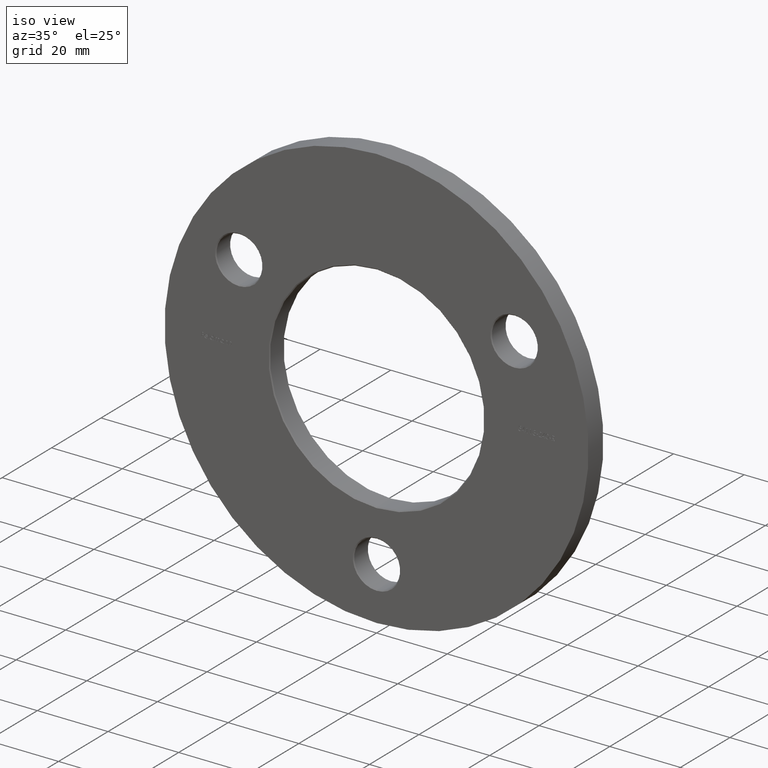
[diagram: clean part render]
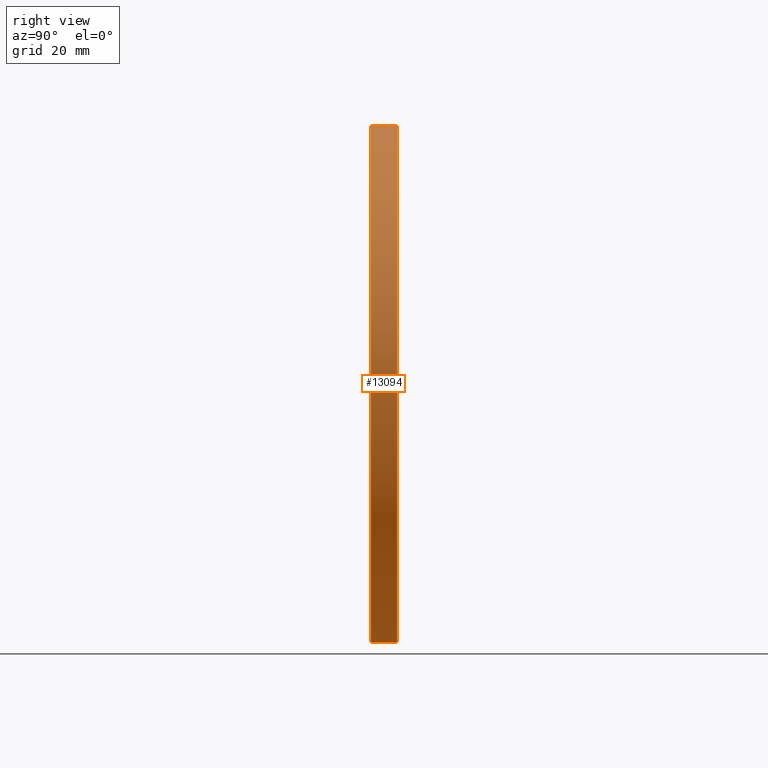
[diagram: tour spotlight — one face highlighted and labeled with its STEP entity id]
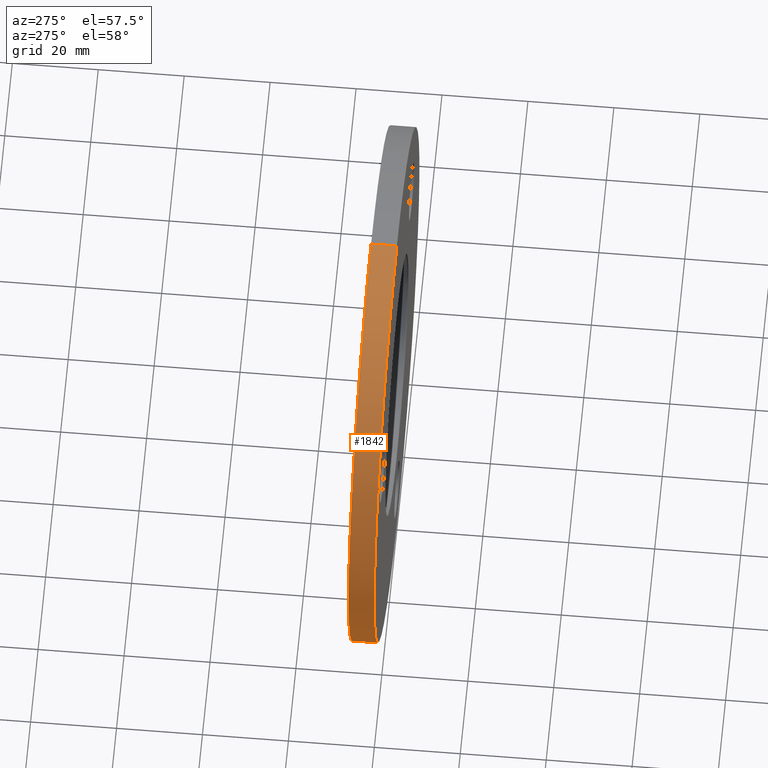
[diagram: tour spotlight — one face highlighted and labeled with its STEP entity id]
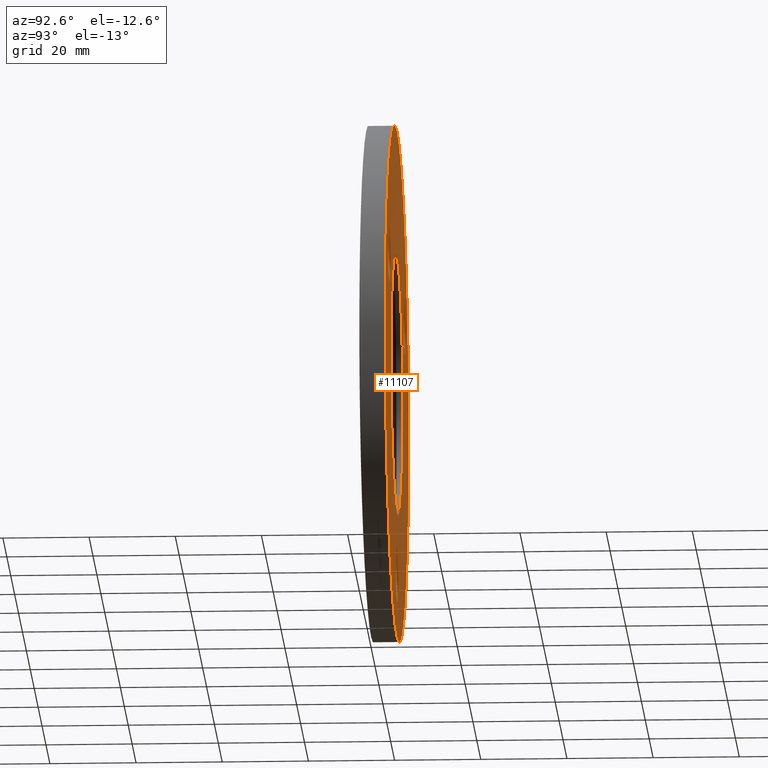
[diagram: tour spotlight — one face highlighted and labeled with its STEP entity id]
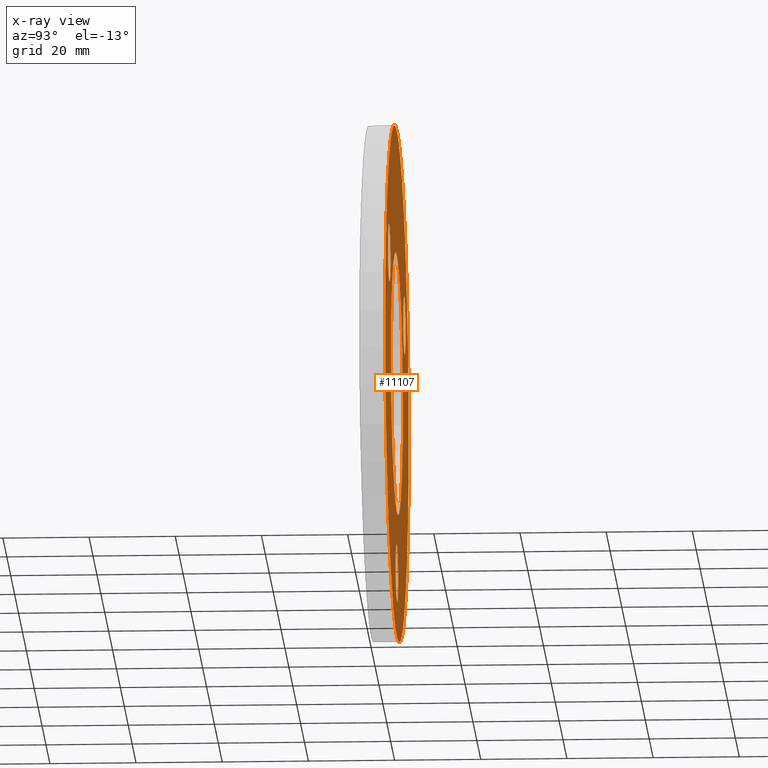
[diagram: x-ray of the same camera — body ghosted, this tour face saturated]
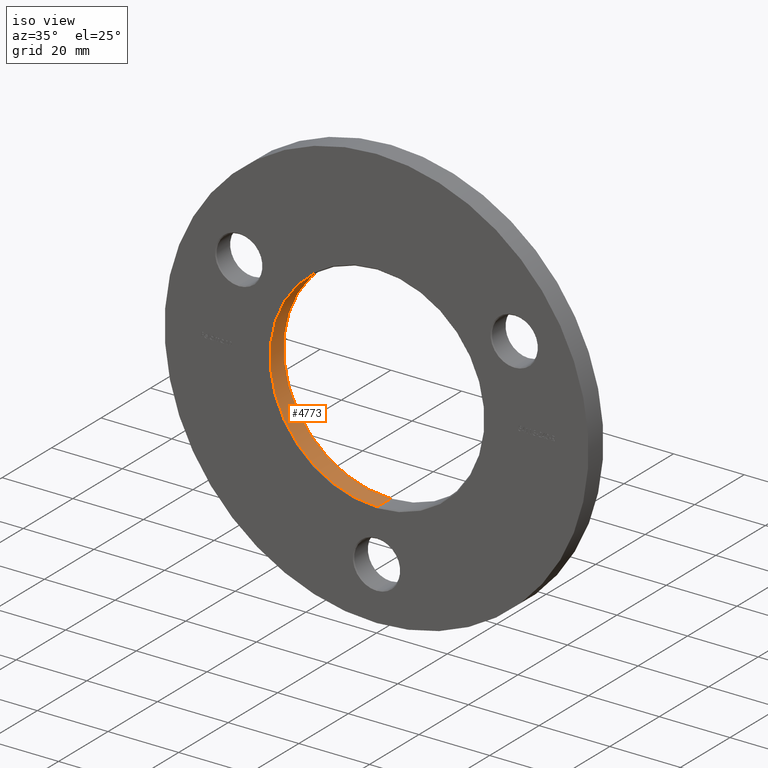
[diagram: tour spotlight — one face highlighted and labeled with its STEP entity id]
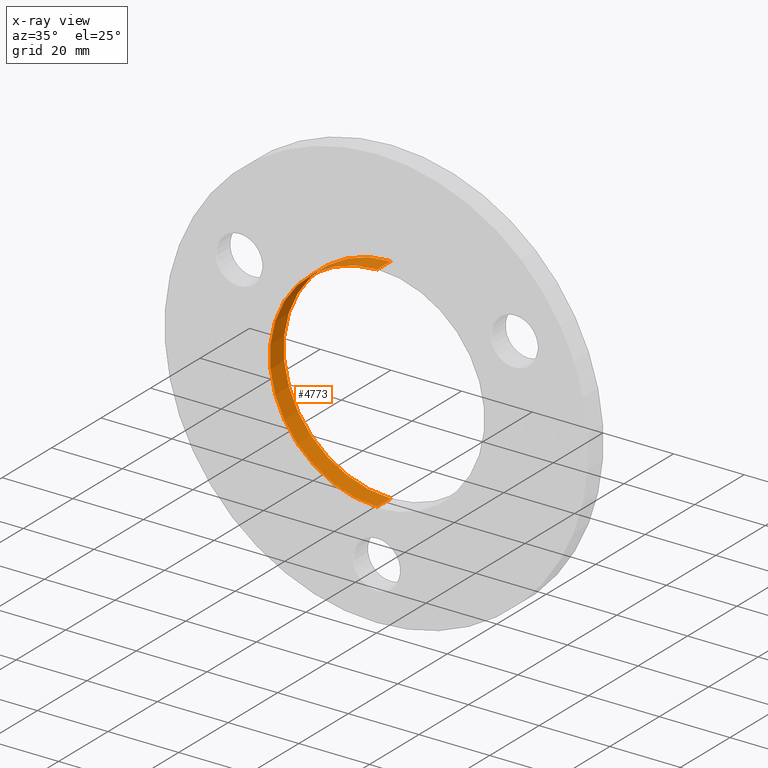
[diagram: x-ray of the same camera — body ghosted, this tour face saturated]
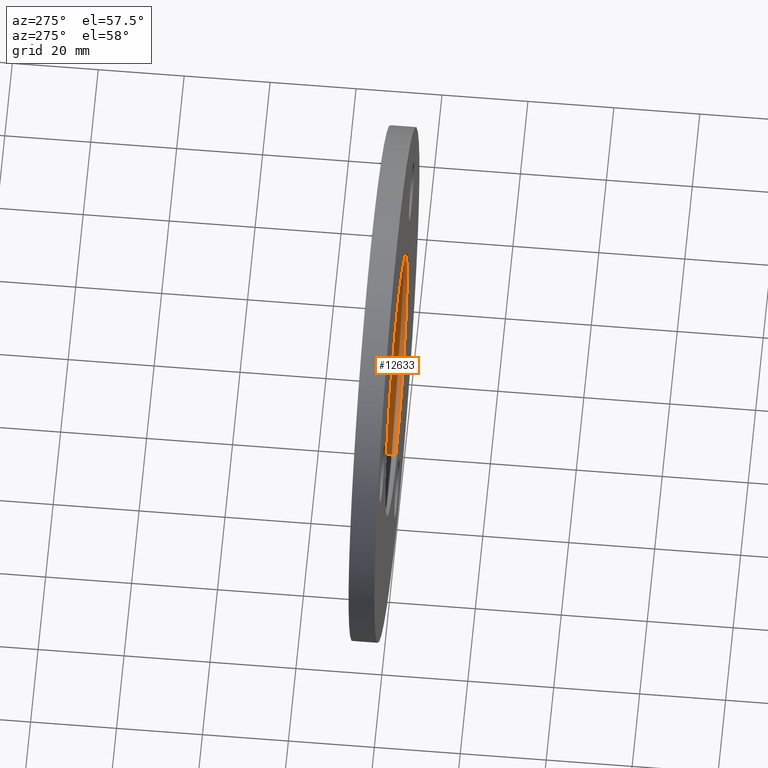
[diagram: tour spotlight — one face highlighted and labeled with its STEP entity id]
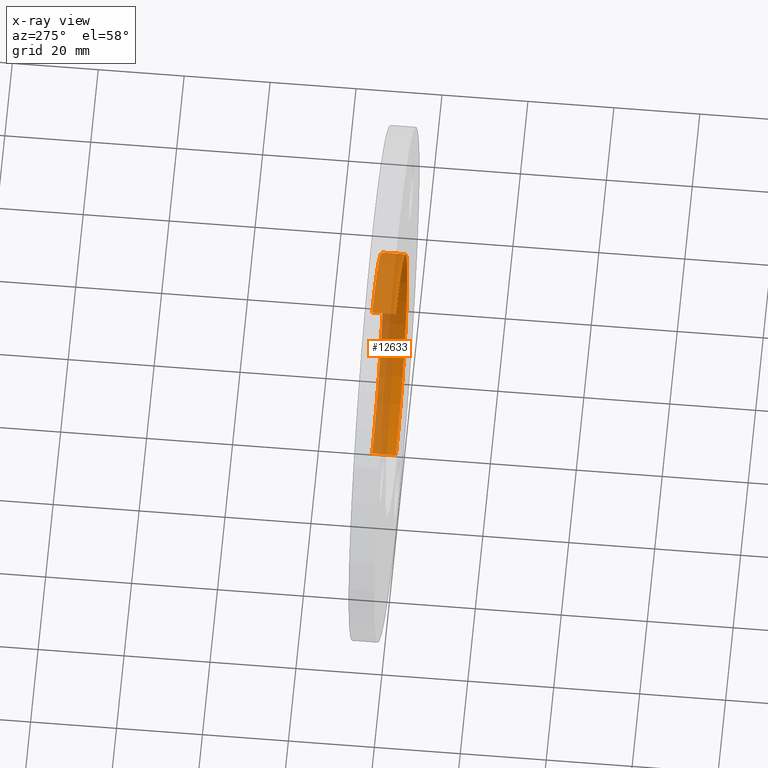
[diagram: x-ray of the same camera — body ghosted, this tour face saturated]
A machine part: a face-by-face anatomy tour. The part has 270 B-rep faces; the first image is the clean iso view, then the 5 largest visible faces are spotlighted one at a time (largest first), each with its STEP entity span.

Face 1 — right view, entity #13094. In plain terms, the highlighted cylindrical surface (partial cylindrical patch) has radius 60 mm, axis along (-0, -1, -0).
Definition (entity closure, byte-faithful):
#180 = ORIENTED_EDGE ( 'NONE', *, *, #6121, .T. ) ;
#286 = LINE ( 'NONE', #12844, #9824 ) ;
#524 = CIRCLE ( 'NONE', #11361, 60.00000000000000000 ) ;
#664 = VECTOR ( 'NONE', #2003, 1000.000000000000000 ) ;
#1022 = CARTESIAN_POINT ( 'NONE',  ( 7.347880794884118356E-15, 6.000000000000000000, 60.00000000000000000 ) ) ;
#1240 = VERTEX_POINT ( 'NONE', #2519 ) ;
#1245 = CIRCLE ( 'NONE', #12907, 60.00000000000000000 ) ;
#1356 = CARTESIAN_POINT ( 'NONE',  ( 0.000000000000000000, 6.000000000000000000, -60.00000000000000000 ) ) ;
#2003 = DIRECTION ( 'NONE',  ( -0.000000000000000000, -1.000000000000000000, -0.000000000000000000 ) ) ;
#2519 = CARTESIAN_POINT ( 'NONE',  ( 7.347880794884118356E-15, 0.000000000000000000, 60.00000000000000000 ) ) ;
#2871 = DIRECTION ( 'NONE',  ( 0.000000000000000000, 1.000000000000000000, 0.000000000000000000 ) ) ;
#3474 = CARTESIAN_POINT ( 'NONE',  ( 0.000000000000000000, 0.000000000000000000, 0.000000000000000000 ) ) ;
#3690 = VERTEX_POINT ( 'NONE', #10359 ) ;
#4228 = VERTEX_POINT ( 'NONE', #1356 ) ;
#4402 = DIRECTION ( 'NONE',  ( 0.000000000000000000, 0.000000000000000000, -1.000000000000000000 ) ) ;
#4544 = DIRECTION ( 'NONE',  ( 0.000000000000000000, 1.000000000000000000, 0.000000000000000000 ) ) ;
#5380 = CYLINDRICAL_SURFACE ( 'NONE', #9853, 60.00000000000000000 ) ;
#5437 = DIRECTION ( 'NONE',  ( 0.000000000000000000, 0.000000000000000000, 1.000000000000000000 ) ) ;
#5600 = CARTESIAN_POINT ( 'NONE',  ( 0.000000000000000000, 6.000000000000000000, 0.000000000000000000 ) ) ;
#5797 = ORIENTED_EDGE ( 'NONE', *, *, #7288, .T. ) ;
#6022 = CARTESIAN_POINT ( 'NONE',  ( 0.000000000000000000, 6.000000000000000000, 0.000000000000000000 ) ) ;
#6121 = EDGE_CURVE ( 'NONE', #1240, #3690, #524, .T. ) ;
#6561 = LINE ( 'NONE', #1022, #664 ) ;
#7048 = DIRECTION ( 'NONE',  ( 0.000000000000000000, 0.000000000000000000, 1.000000000000000000 ) ) ;
#7288 = EDGE_CURVE ( 'NONE', #11442, #1240, #6561, .T. ) ;
#8502 = DIRECTION ( 'NONE',  ( -0.000000000000000000, -1.000000000000000000, -0.000000000000000000 ) ) ;
#9194 = FACE_OUTER_BOUND ( 'NONE', #11242, .T. ) ;
#9554 = ORIENTED_EDGE ( 'NONE', *, *, #13032, .F. ) ;
#9824 = VECTOR ( 'NONE', #12888, 1000.000000000000000 ) ;
#9853 = AXIS2_PLACEMENT_3D ( 'NONE', #5600, #8502, #4402 ) ;
#10359 = CARTESIAN_POINT ( 'NONE',  ( 0.000000000000000000, 0.000000000000000000, -60.00000000000000000 ) ) ;
#10460 = EDGE_CURVE ( 'NONE', #11442, #4228, #1245, .T. ) ;
#11242 = EDGE_LOOP ( 'NONE', ( #12869, #5797, #180, #9554 ) ) ;
#11297 = CARTESIAN_POINT ( 'NONE',  ( 7.347880794884118356E-15, 6.000000000000000000, 60.00000000000000000 ) ) ;
#11361 = AXIS2_PLACEMENT_3D ( 'NONE', #3474, #4544, #5437 ) ;
#11442 = VERTEX_POINT ( 'NONE', #11297 ) ;
#12844 = CARTESIAN_POINT ( 'NONE',  ( 0.000000000000000000, 6.000000000000000000, -60.00000000000000000 ) ) ;
#12869 = ORIENTED_EDGE ( 'NONE', *, *, #10460, .F. ) ;
#12888 = DIRECTION ( 'NONE',  ( -0.000000000000000000, -1.000000000000000000, -0.000000000000000000 ) ) ;
#12907 = AXIS2_PLACEMENT_3D ( 'NONE', #6022, #2871, #7048 ) ;
#13032 = EDGE_CURVE ( 'NONE', #4228, #3690, #286, .T. ) ;
#13094 = ADVANCED_FACE ( 'NONE', ( #9194 ), #5380, .T. ) ;

Face 2 — auxiliary view, entity #1842. In plain terms, the highlighted cylindrical surface (partial cylindrical patch) has radius 60 mm, axis along (-0, -1, -0).
Definition (entity closure, byte-faithful):
#178 = DIRECTION ( 'NONE',  ( 0.000000000000000000, 1.000000000000000000, 0.000000000000000000 ) ) ;
#286 = LINE ( 'NONE', #12844, #9824 ) ;
#341 = ORIENTED_EDGE ( 'NONE', *, *, #13032, .T. ) ;
#664 = VECTOR ( 'NONE', #2003, 1000.000000000000000 ) ;
#871 = DIRECTION ( 'NONE',  ( 0.000000000000000000, 0.000000000000000000, 1.000000000000000000 ) ) ;
#1022 = CARTESIAN_POINT ( 'NONE',  ( 7.347880794884118356E-15, 6.000000000000000000, 60.00000000000000000 ) ) ;
#1240 = VERTEX_POINT ( 'NONE', #2519 ) ;
#1349 = CYLINDRICAL_SURFACE ( 'NONE', #3080, 60.00000000000000000 ) ;
#1356 = CARTESIAN_POINT ( 'NONE',  ( 0.000000000000000000, 6.000000000000000000, -60.00000000000000000 ) ) ;
#1842 = ADVANCED_FACE ( 'NONE', ( #5207 ), #1349, .T. ) ;
#2003 = DIRECTION ( 'NONE',  ( -0.000000000000000000, -1.000000000000000000, -0.000000000000000000 ) ) ;
#2031 = ORIENTED_EDGE ( 'NONE', *, *, #12360, .T. ) ;
#2283 = AXIS2_PLACEMENT_3D ( 'NONE', #10158, #178, #10245 ) ;
#2519 = CARTESIAN_POINT ( 'NONE',  ( 7.347880794884118356E-15, 0.000000000000000000, 60.00000000000000000 ) ) ;
#3080 = AXIS2_PLACEMENT_3D ( 'NONE', #10450, #10406, #7395 ) ;
#3361 = CIRCLE ( 'NONE', #3702, 60.00000000000000000 ) ;
#3690 = VERTEX_POINT ( 'NONE', #10359 ) ;
#3702 = AXIS2_PLACEMENT_3D ( 'NONE', #9983, #5955, #871 ) ;
#4228 = VERTEX_POINT ( 'NONE', #1356 ) ;
#5207 = FACE_OUTER_BOUND ( 'NONE', #7311, .T. ) ;
#5955 = DIRECTION ( 'NONE',  ( 0.000000000000000000, 1.000000000000000000, 0.000000000000000000 ) ) ;
#6561 = LINE ( 'NONE', #1022, #664 ) ;
#6821 = ORIENTED_EDGE ( 'NONE', *, *, #7662, .F. ) ;
#7288 = EDGE_CURVE ( 'NONE', #11442, #1240, #6561, .T. ) ;
#7295 = CIRCLE ( 'NONE', #2283, 60.00000000000000000 ) ;
#7311 = EDGE_LOOP ( 'NONE', ( #7483, #6821, #341, #2031 ) ) ;
#7395 = DIRECTION ( 'NONE',  ( 0.000000000000000000, 0.000000000000000000, -1.000000000000000000 ) ) ;
#7483 = ORIENTED_EDGE ( 'NONE', *, *, #7288, .F. ) ;
#7662 = EDGE_CURVE ( 'NONE', #4228, #11442, #3361, .T. ) ;
#9824 = VECTOR ( 'NONE', #12888, 1000.000000000000000 ) ;
#9983 = CARTESIAN_POINT ( 'NONE',  ( 0.000000000000000000, 6.000000000000000000, 0.000000000000000000 ) ) ;
#10158 = CARTESIAN_POINT ( 'NONE',  ( 0.000000000000000000, 0.000000000000000000, 0.000000000000000000 ) ) ;
#10245 = DIRECTION ( 'NONE',  ( 0.000000000000000000, 0.000000000000000000, 1.000000000000000000 ) ) ;
#10359 = CARTESIAN_POINT ( 'NONE',  ( 0.000000000000000000, 0.000000000000000000, -60.00000000000000000 ) ) ;
#10406 = DIRECTION ( 'NONE',  ( -0.000000000000000000, -1.000000000000000000, -0.000000000000000000 ) ) ;
#10450 = CARTESIAN_POINT ( 'NONE',  ( 0.000000000000000000, 6.000000000000000000, 0.000000000000000000 ) ) ;
#11297 = CARTESIAN_POINT ( 'NONE',  ( 7.347880794884118356E-15, 6.000000000000000000, 60.00000000000000000 ) ) ;
#11442 = VERTEX_POINT ( 'NONE', #11297 ) ;
#12360 = EDGE_CURVE ( 'NONE', #3690, #1240, #7295, .T. ) ;
#12844 = CARTESIAN_POINT ( 'NONE',  ( 0.000000000000000000, 6.000000000000000000, -60.00000000000000000 ) ) ;
#12888 = DIRECTION ( 'NONE',  ( -0.000000000000000000, -1.000000000000000000, -0.000000000000000000 ) ) ;
#13032 = EDGE_CURVE ( 'NONE', #4228, #3690, #286, .T. ) ;

Face 3 — auxiliary view, entity #11107. An x-ray twin of the same camera follows (body ghosted, this face saturated) — the face is partly hidden behind the body. In plain terms, the highlighted planar face has unit normal (0, 1, 0).
Definition (entity closure, byte-faithful):
#815 = VERTEX_POINT ( 'NONE', #5241 ) ;
#871 = DIRECTION ( 'NONE',  ( 0.000000000000000000, 0.000000000000000000, 1.000000000000000000 ) ) ;
#994 = DIRECTION ( 'NONE',  ( -0.000000000000000000, -1.000000000000000000, -0.000000000000000000 ) ) ;
#1045 = AXIS2_PLACEMENT_3D ( 'NONE', #6115, #8075, #2956 ) ;
#1060 = CIRCLE ( 'NONE', #5845, 6.749999999999992006 ) ;
#1245 = CIRCLE ( 'NONE', #12907, 60.00000000000000000 ) ;
#1356 = CARTESIAN_POINT ( 'NONE',  ( 0.000000000000000000, 6.000000000000000000, -60.00000000000000000 ) ) ;
#2087 = CARTESIAN_POINT ( 'NONE',  ( 38.97114317029974728, 6.000000000000000000, 29.25000000000002487 ) ) ;
#2104 = CIRCLE ( 'NONE', #3022, 6.750000000000033751 ) ;
#2173 = DIRECTION ( 'NONE',  ( -0.000000000000000000, -1.000000000000000000, -0.000000000000000000 ) ) ;
#2204 = CARTESIAN_POINT ( 'NONE',  ( 38.97114317029974728, 6.000000000000000000, 22.49999999999999289 ) ) ;
#2486 = ORIENTED_EDGE ( 'NONE', *, *, #11374, .T. ) ;
#2616 = VERTEX_POINT ( 'NONE', #4649 ) ;
#2871 = DIRECTION ( 'NONE',  ( 0.000000000000000000, 1.000000000000000000, 0.000000000000000000 ) ) ;
#2886 = DIRECTION ( 'NONE',  ( 0.000000000000000000, 0.000000000000000000, 1.000000000000000000 ) ) ;
#2956 = DIRECTION ( 'NONE',  ( 0.000000000000000000, 0.000000000000000000, 1.000000000000000000 ) ) ;
#3022 = AXIS2_PLACEMENT_3D ( 'NONE', #11584, #9453, #11495 ) ;
#3124 = AXIS2_PLACEMENT_3D ( 'NONE', #7871, #7824, #2886 ) ;
#3154 = FACE_OUTER_BOUND ( 'NONE', #9724, .T. ) ;
#3188 = DIRECTION ( 'NONE',  ( -0.000000000000000000, -1.000000000000000000, -0.000000000000000000 ) ) ;
#3361 = CIRCLE ( 'NONE', #3702, 60.00000000000000000 ) ;
#3493 = ORIENTED_EDGE ( 'NONE', *, *, #11135, .T. ) ;
#3522 = CIRCLE ( 'NONE', #8055, 6.750000000000033751 ) ;
#3702 = AXIS2_PLACEMENT_3D ( 'NONE', #9983, #5955, #871 ) ;
#3780 = FACE_BOUND ( 'NONE', #12025, .T. ) ;
#3853 = AXIS2_PLACEMENT_3D ( 'NONE', #7682, #8668, #11682 ) ;
#3931 = FACE_BOUND ( 'NONE', #4155, .T. ) ;
#4027 = CARTESIAN_POINT ( 'NONE',  ( 8.266365894244624473E-16, 6.000000000000000000, -51.74999999999999289 ) ) ;
#4075 = CARTESIAN_POINT ( 'NONE',  ( 38.97114317029974728, 6.000000000000000000, 15.74999999999995914 ) ) ;
#4109 = AXIS2_PLACEMENT_3D ( 'NONE', #11470, #12450, #10351 ) ;
#4155 = EDGE_LOOP ( 'NONE', ( #3493, #2486 ) ) ;
#4228 = VERTEX_POINT ( 'NONE', #1356 ) ;
#4353 = EDGE_CURVE ( 'NONE', #2616, #815, #6748, .T. ) ;
#4482 = EDGE_CURVE ( 'NONE', #8931, #6370, #10079, .T. ) ;
#4529 = EDGE_LOOP ( 'NONE', ( #5938, #11988 ) ) ;
#4649 = CARTESIAN_POINT ( 'NONE',  ( -38.97114317029972597, 6.000000000000000000, 15.74999999999998579 ) ) ;
#4749 = CIRCLE ( 'NONE', #3124, 6.749999999999992006 ) ;
#5139 = CARTESIAN_POINT ( 'NONE',  ( 38.97114317029974728, 6.000000000000000000, 22.49999999999999289 ) ) ;
#5241 = CARTESIAN_POINT ( 'NONE',  ( -38.97114317029972597, 6.000000000000000000, 29.25000000000005329 ) ) ;
#5340 = CARTESIAN_POINT ( 'NONE',  ( 0.000000000000000000, 6.000000000000000000, -45.00000000000000000 ) ) ;
#5520 = EDGE_CURVE ( 'NONE', #6370, #8931, #6262, .T. ) ;
#5568 = CARTESIAN_POINT ( 'NONE',  ( 0.000000000000000000, 6.000000000000000000, -38.25000000000000711 ) ) ;
#5845 = AXIS2_PLACEMENT_3D ( 'NONE', #5340, #2173, #11467 ) ;
#5938 = ORIENTED_EDGE ( 'NONE', *, *, #4482, .T. ) ;
#5955 = DIRECTION ( 'NONE',  ( 0.000000000000000000, 1.000000000000000000, 0.000000000000000000 ) ) ;
#6022 = CARTESIAN_POINT ( 'NONE',  ( 0.000000000000000000, 6.000000000000000000, 0.000000000000000000 ) ) ;
#6115 = CARTESIAN_POINT ( 'NONE',  ( 0.000000000000000000, 6.000000000000000000, 0.000000000000000000 ) ) ;
#6123 = VERTEX_POINT ( 'NONE', #5568 ) ;
#6262 = CIRCLE ( 'NONE', #1045, 30.60000000000001208 ) ;
#6370 = VERTEX_POINT ( 'NONE', #9029 ) ;
#6547 = VERTEX_POINT ( 'NONE', #2087 ) ;
#6748 = CIRCLE ( 'NONE', #4109, 6.750000000000033751 ) ;
#6909 = CARTESIAN_POINT ( 'NONE',  ( 0.000000000000000000, 6.000000000000000000, 0.000000000000000000 ) ) ;
#6972 = EDGE_CURVE ( 'NONE', #6547, #7840, #8634, .T. ) ;
#7048 = DIRECTION ( 'NONE',  ( 0.000000000000000000, 0.000000000000000000, 1.000000000000000000 ) ) ;
#7051 = EDGE_CURVE ( 'NONE', #815, #2616, #2104, .T. ) ;
#7110 = AXIS2_PLACEMENT_3D ( 'NONE', #5139, #3188, #7191 ) ;
#7191 = DIRECTION ( 'NONE',  ( 0.000000000000000000, 0.000000000000000000, 1.000000000000000000 ) ) ;
#7290 = FACE_BOUND ( 'NONE', #4529, .T. ) ;
#7662 = EDGE_CURVE ( 'NONE', #4228, #11442, #3361, .T. ) ;
#7682 = CARTESIAN_POINT ( 'NONE',  ( 0.000000000000000000, 6.000000000000000000, 0.000000000000000000 ) ) ;
#7802 = PLANE ( 'NONE',  #8340 ) ;
#7824 = DIRECTION ( 'NONE',  ( -0.000000000000000000, -1.000000000000000000, -0.000000000000000000 ) ) ;
#7840 = VERTEX_POINT ( 'NONE', #4075 ) ;
#7871 = CARTESIAN_POINT ( 'NONE',  ( 0.000000000000000000, 6.000000000000000000, -45.00000000000000000 ) ) ;
#7886 = DIRECTION ( 'NONE',  ( 0.000000000000000000, 1.000000000000000000, 0.000000000000000000 ) ) ;
#8055 = AXIS2_PLACEMENT_3D ( 'NONE', #2204, #994, #9329 ) ;
#8075 = DIRECTION ( 'NONE',  ( -0.000000000000000000, -1.000000000000000000, -0.000000000000000000 ) ) ;
#8281 = EDGE_CURVE ( 'NONE', #7840, #6547, #3522, .T. ) ;
#8340 = AXIS2_PLACEMENT_3D ( 'NONE', #6909, #7886, #10591 ) ;
#8572 = FACE_BOUND ( 'NONE', #10530, .T. ) ;
#8634 = CIRCLE ( 'NONE', #7110, 6.750000000000033751 ) ;
#8668 = DIRECTION ( 'NONE',  ( -0.000000000000000000, -1.000000000000000000, -0.000000000000000000 ) ) ;
#8931 = VERTEX_POINT ( 'NONE', #10619 ) ;
#9029 = CARTESIAN_POINT ( 'NONE',  ( 3.747419205390902475E-15, 6.000000000000000000, -30.60000000000001208 ) ) ;
#9270 = ORIENTED_EDGE ( 'NONE', *, *, #10460, .T. ) ;
#9304 = ORIENTED_EDGE ( 'NONE', *, *, #4353, .T. ) ;
#9329 = DIRECTION ( 'NONE',  ( 0.000000000000000000, 0.000000000000000000, 1.000000000000000000 ) ) ;
#9453 = DIRECTION ( 'NONE',  ( -0.000000000000000000, -1.000000000000000000, -0.000000000000000000 ) ) ;
#9468 = VERTEX_POINT ( 'NONE', #4027 ) ;
#9724 = EDGE_LOOP ( 'NONE', ( #13030, #9270 ) ) ;
#9832 = ORIENTED_EDGE ( 'NONE', *, *, #6972, .T. ) ;
#9983 = CARTESIAN_POINT ( 'NONE',  ( 0.000000000000000000, 6.000000000000000000, 0.000000000000000000 ) ) ;
#10079 = CIRCLE ( 'NONE', #3853, 30.60000000000001208 ) ;
#10351 = DIRECTION ( 'NONE',  ( 0.000000000000000000, 0.000000000000000000, 1.000000000000000000 ) ) ;
#10460 = EDGE_CURVE ( 'NONE', #11442, #4228, #1245, .T. ) ;
#10530 = EDGE_LOOP ( 'NONE', ( #9832, #11257 ) ) ;
#10591 = DIRECTION ( 'NONE',  ( 0.000000000000000000, -0.000000000000000000, 1.000000000000000000 ) ) ;
#10619 = CARTESIAN_POINT ( 'NONE',  ( 0.000000000000000000, 6.000000000000000000, 30.60000000000001208 ) ) ;
#11107 = ADVANCED_FACE ( 'NONE', ( #7290, #8572, #3780, #3931, #3154 ), #7802, .T. ) ;
#11135 = EDGE_CURVE ( 'NONE', #6123, #9468, #4749, .T. ) ;
#11257 = ORIENTED_EDGE ( 'NONE', *, *, #8281, .T. ) ;
#11297 = CARTESIAN_POINT ( 'NONE',  ( 7.347880794884118356E-15, 6.000000000000000000, 60.00000000000000000 ) ) ;
#11374 = EDGE_CURVE ( 'NONE', #9468, #6123, #1060, .T. ) ;
#11442 = VERTEX_POINT ( 'NONE', #11297 ) ;
#11467 = DIRECTION ( 'NONE',  ( 0.000000000000000000, 0.000000000000000000, 1.000000000000000000 ) ) ;
#11470 = CARTESIAN_POINT ( 'NONE',  ( -38.97114317029972597, 6.000000000000000000, 22.50000000000002132 ) ) ;
#11495 = DIRECTION ( 'NONE',  ( 0.000000000000000000, 0.000000000000000000, 1.000000000000000000 ) ) ;
#11584 = CARTESIAN_POINT ( 'NONE',  ( -38.97114317029972597, 6.000000000000000000, 22.50000000000002132 ) ) ;
#11682 = DIRECTION ( 'NONE',  ( 0.000000000000000000, 0.000000000000000000, 1.000000000000000000 ) ) ;
#11988 = ORIENTED_EDGE ( 'NONE', *, *, #5520, .T. ) ;
#12025 = EDGE_LOOP ( 'NONE', ( #12229, #9304 ) ) ;
#12229 = ORIENTED_EDGE ( 'NONE', *, *, #7051, .T. ) ;
#12450 = DIRECTION ( 'NONE',  ( -0.000000000000000000, -1.000000000000000000, -0.000000000000000000 ) ) ;
#12907 = AXIS2_PLACEMENT_3D ( 'NONE', #6022, #2871, #7048 ) ;
#13030 = ORIENTED_EDGE ( 'NONE', *, *, #7662, .T. ) ;

Face 4 — iso view, entity #4773. An x-ray twin of the same camera follows (body ghosted, this face saturated) — the face is partly hidden behind the body. In plain terms, the highlighted cylindrical surface (partial cylindrical patch) has radius 30.35 mm, axis along (-0, 1, -0).
Definition (entity closure, byte-faithful):
#436 = ORIENTED_EDGE ( 'NONE', *, *, #5613, .T. ) ;
#463 = ORIENTED_EDGE ( 'NONE', *, *, #11705, .F. ) ;
#946 = CARTESIAN_POINT ( 'NONE',  ( 0.000000000000000000, 5.749999999999965361, 30.35000000000000142 ) ) ;
#976 = ORIENTED_EDGE ( 'NONE', *, *, #1595, .T. ) ;
#1130 = DIRECTION ( 'NONE',  ( 0.000000000000000000, 1.000000000000000000, 0.000000000000000000 ) ) ;
#1595 = EDGE_CURVE ( 'NONE', #6315, #8270, #2782, .T. ) ;
#1955 = VERTEX_POINT ( 'NONE', #9705 ) ;
#2300 = CYLINDRICAL_SURFACE ( 'NONE', #9325, 30.35000000000000142 ) ;
#2649 = ORIENTED_EDGE ( 'NONE', *, *, #6349, .T. ) ;
#2782 = LINE ( 'NONE', #4383, #3738 ) ;
#3348 = DIRECTION ( 'NONE',  ( 0.000000000000000000, 0.000000000000000000, 1.000000000000000000 ) ) ;
#3738 = VECTOR ( 'NONE', #12475, 1000.000000000000000 ) ;
#4048 = DIRECTION ( 'NONE',  ( 0.000000000000000000, 0.000000000000000000, 1.000000000000000000 ) ) ;
#4383 = CARTESIAN_POINT ( 'NONE',  ( 3.716803035412217111E-15, 0.000000000000000000, -30.35000000000000142 ) ) ;
#4773 = ADVANCED_FACE ( 'NONE', ( #9311 ), #2300, .F. ) ;
#5231 = CARTESIAN_POINT ( 'NONE',  ( 0.000000000000000000, 5.749999999999965361, 0.000000000000000000 ) ) ;
#5253 = EDGE_LOOP ( 'NONE', ( #2649, #976, #436, #463 ) ) ;
#5613 = EDGE_CURVE ( 'NONE', #8270, #11634, #7849, .T. ) ;
#5681 = LINE ( 'NONE', #8351, #11573 ) ;
#6315 = VERTEX_POINT ( 'NONE', #6678 ) ;
#6349 = EDGE_CURVE ( 'NONE', #1955, #6315, #7833, .T. ) ;
#6678 = CARTESIAN_POINT ( 'NONE',  ( 3.716803035412217111E-15, 0.2499999999999794054, -30.35000000000000142 ) ) ;
#6894 = DIRECTION ( 'NONE',  ( -0.000000000000000000, -1.000000000000000000, -0.000000000000000000 ) ) ;
#6937 = CARTESIAN_POINT ( 'NONE',  ( 0.000000000000000000, 0.2499999999999794054, 0.000000000000000000 ) ) ;
#7361 = DIRECTION ( 'NONE',  ( -0.000000000000000000, 1.000000000000000000, -0.000000000000000000 ) ) ;
#7769 = CARTESIAN_POINT ( 'NONE',  ( 0.000000000000000000, 0.000000000000000000, 0.000000000000000000 ) ) ;
#7833 = CIRCLE ( 'NONE', #12715, 30.35000000000000142 ) ;
#7849 = CIRCLE ( 'NONE', #12636, 30.35000000000000142 ) ;
#8270 = VERTEX_POINT ( 'NONE', #12347 ) ;
#8351 = CARTESIAN_POINT ( 'NONE',  ( 0.000000000000000000, 0.000000000000000000, 30.35000000000000142 ) ) ;
#8985 = DIRECTION ( 'NONE',  ( 0.000000000000000000, 0.000000000000000000, 1.000000000000000000 ) ) ;
#9311 = FACE_OUTER_BOUND ( 'NONE', #5253, .T. ) ;
#9325 = AXIS2_PLACEMENT_3D ( 'NONE', #7769, #11859, #4048 ) ;
#9705 = CARTESIAN_POINT ( 'NONE',  ( 0.000000000000000000, 0.2499999999999794054, 30.35000000000000142 ) ) ;
#11573 = VECTOR ( 'NONE', #7361, 1000.000000000000000 ) ;
#11634 = VERTEX_POINT ( 'NONE', #946 ) ;
#11705 = EDGE_CURVE ( 'NONE', #1955, #11634, #5681, .T. ) ;
#11859 = DIRECTION ( 'NONE',  ( -0.000000000000000000, 1.000000000000000000, -0.000000000000000000 ) ) ;
#12347 = CARTESIAN_POINT ( 'NONE',  ( 3.716803035412217111E-15, 5.749999999999965361, -30.35000000000000142 ) ) ;
#12475 = DIRECTION ( 'NONE',  ( -0.000000000000000000, 1.000000000000000000, -0.000000000000000000 ) ) ;
#12636 = AXIS2_PLACEMENT_3D ( 'NONE', #5231, #1130, #3348 ) ;
#12715 = AXIS2_PLACEMENT_3D ( 'NONE', #6937, #6894, #8985 ) ;

Face 5 — auxiliary view, entity #12633. An x-ray twin of the same camera follows (body ghosted, this face saturated) — the face is partly hidden behind the body. In plain terms, the highlighted cylindrical surface (partial cylindrical patch) has radius 30.35 mm, axis along (-0, 1, -0).
Definition (entity closure, byte-faithful):
#136 = ORIENTED_EDGE ( 'NONE', *, *, #1595, .F. ) ;
#545 = CIRCLE ( 'NONE', #10918, 30.35000000000000142 ) ;
#677 = CARTESIAN_POINT ( 'NONE',  ( 0.000000000000000000, 0.000000000000000000, 0.000000000000000000 ) ) ;
#946 = CARTESIAN_POINT ( 'NONE',  ( 0.000000000000000000, 5.749999999999965361, 30.35000000000000142 ) ) ;
#1572 = AXIS2_PLACEMENT_3D ( 'NONE', #9604, #7689, #5472 ) ;
#1595 = EDGE_CURVE ( 'NONE', #6315, #8270, #2782, .T. ) ;
#1955 = VERTEX_POINT ( 'NONE', #9705 ) ;
#2145 = CARTESIAN_POINT ( 'NONE',  ( 0.000000000000000000, 0.2499999999999794054, 0.000000000000000000 ) ) ;
#2376 = ORIENTED_EDGE ( 'NONE', *, *, #11705, .T. ) ;
#2782 = LINE ( 'NONE', #4383, #3738 ) ;
#2818 = DIRECTION ( 'NONE',  ( 0.000000000000000000, 0.000000000000000000, 1.000000000000000000 ) ) ;
#3738 = VECTOR ( 'NONE', #12475, 1000.000000000000000 ) ;
#4093 = DIRECTION ( 'NONE',  ( -0.000000000000000000, -1.000000000000000000, -0.000000000000000000 ) ) ;
#4383 = CARTESIAN_POINT ( 'NONE',  ( 3.716803035412217111E-15, 0.000000000000000000, -30.35000000000000142 ) ) ;
#4417 = FACE_OUTER_BOUND ( 'NONE', #4822, .T. ) ;
#4810 = EDGE_CURVE ( 'NONE', #6315, #1955, #545, .T. ) ;
#4822 = EDGE_LOOP ( 'NONE', ( #136, #9088, #2376, #7777 ) ) ;
#5077 = DIRECTION ( 'NONE',  ( 0.000000000000000000, 0.000000000000000000, 1.000000000000000000 ) ) ;
#5085 = CIRCLE ( 'NONE', #1572, 30.35000000000000142 ) ;
#5472 = DIRECTION ( 'NONE',  ( 0.000000000000000000, 0.000000000000000000, 1.000000000000000000 ) ) ;
#5681 = LINE ( 'NONE', #8351, #11573 ) ;
#6315 = VERTEX_POINT ( 'NONE', #6678 ) ;
#6678 = CARTESIAN_POINT ( 'NONE',  ( 3.716803035412217111E-15, 0.2499999999999794054, -30.35000000000000142 ) ) ;
#7361 = DIRECTION ( 'NONE',  ( -0.000000000000000000, 1.000000000000000000, -0.000000000000000000 ) ) ;
#7689 = DIRECTION ( 'NONE',  ( 0.000000000000000000, 1.000000000000000000, 0.000000000000000000 ) ) ;
#7777 = ORIENTED_EDGE ( 'NONE', *, *, #9284, .T. ) ;
#8270 = VERTEX_POINT ( 'NONE', #12347 ) ;
#8351 = CARTESIAN_POINT ( 'NONE',  ( 0.000000000000000000, 0.000000000000000000, 30.35000000000000142 ) ) ;
#9088 = ORIENTED_EDGE ( 'NONE', *, *, #4810, .T. ) ;
#9284 = EDGE_CURVE ( 'NONE', #11634, #8270, #5085, .T. ) ;
#9604 = CARTESIAN_POINT ( 'NONE',  ( 0.000000000000000000, 5.749999999999965361, 0.000000000000000000 ) ) ;
#9705 = CARTESIAN_POINT ( 'NONE',  ( 0.000000000000000000, 0.2499999999999794054, 30.35000000000000142 ) ) ;
#10275 = AXIS2_PLACEMENT_3D ( 'NONE', #677, #12951, #2818 ) ;
#10918 = AXIS2_PLACEMENT_3D ( 'NONE', #2145, #4093, #5077 ) ;
#11573 = VECTOR ( 'NONE', #7361, 1000.000000000000000 ) ;
#11634 = VERTEX_POINT ( 'NONE', #946 ) ;
#11705 = EDGE_CURVE ( 'NONE', #1955, #11634, #5681, .T. ) ;
#12347 = CARTESIAN_POINT ( 'NONE',  ( 3.716803035412217111E-15, 5.749999999999965361, -30.35000000000000142 ) ) ;
#12475 = DIRECTION ( 'NONE',  ( -0.000000000000000000, 1.000000000000000000, -0.000000000000000000 ) ) ;
#12633 = ADVANCED_FACE ( 'NONE', ( #4417 ), #12838, .F. ) ;
#12838 = CYLINDRICAL_SURFACE ( 'NONE', #10275, 30.35000000000000142 ) ;
#12951 = DIRECTION ( 'NONE',  ( -0.000000000000000000, 1.000000000000000000, -0.000000000000000000 ) ) ;